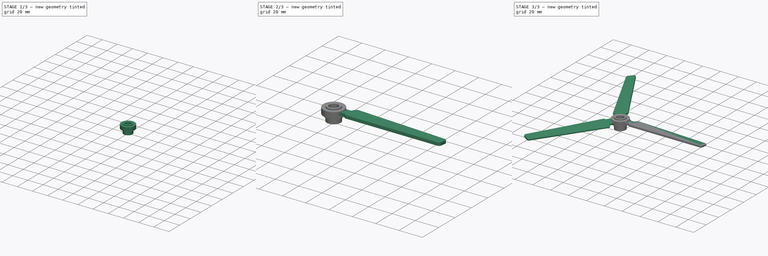
[diagram: build sequence overview — one tinted view per stage of 3, left to right]
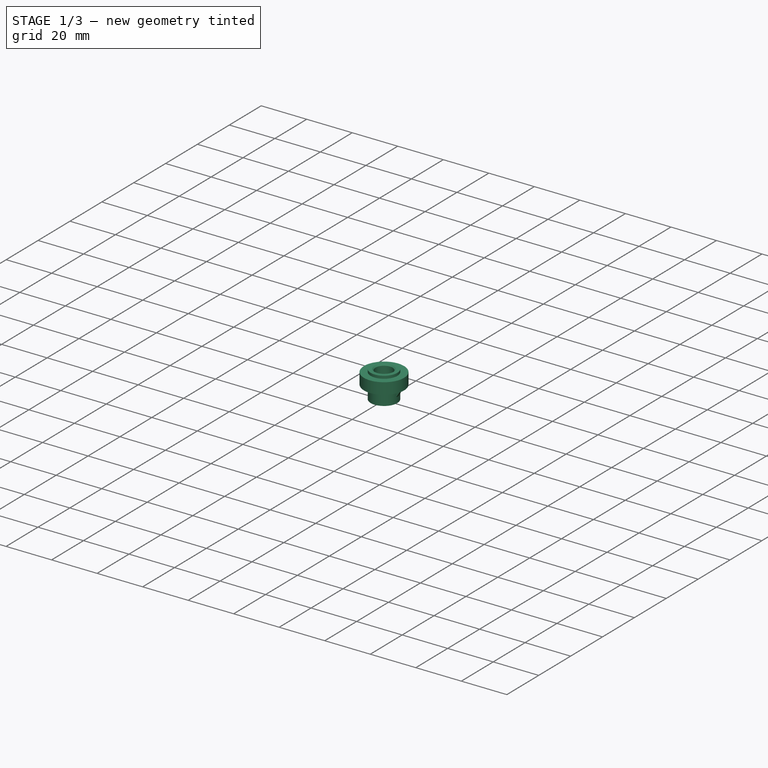
[diagram: stage 1 of 3 — iso view after this stage's code; geometry added in this stage tinted green]
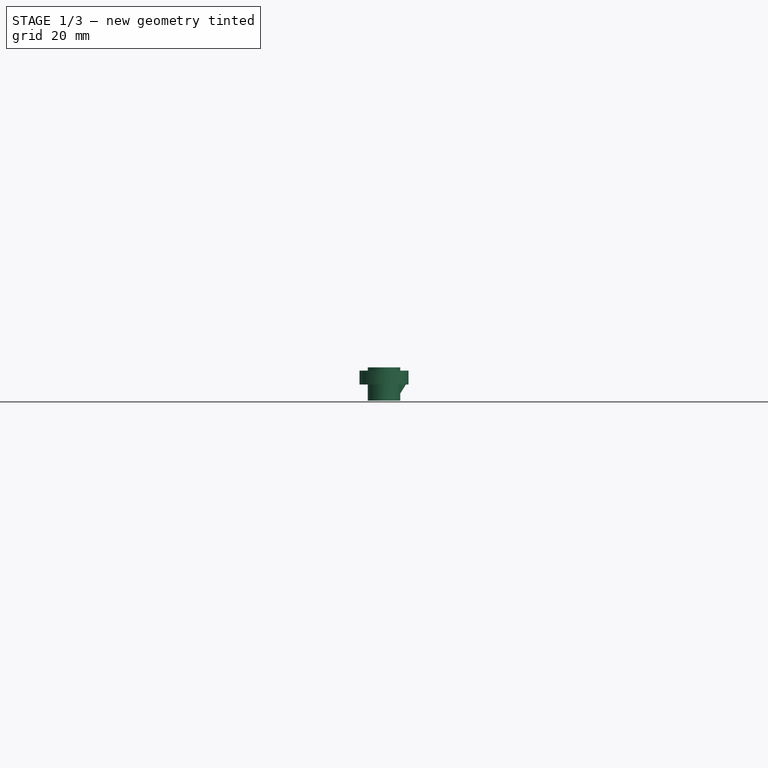
[diagram: stage 1 of 3 — front view after this stage's code; geometry added in this stage tinted green]
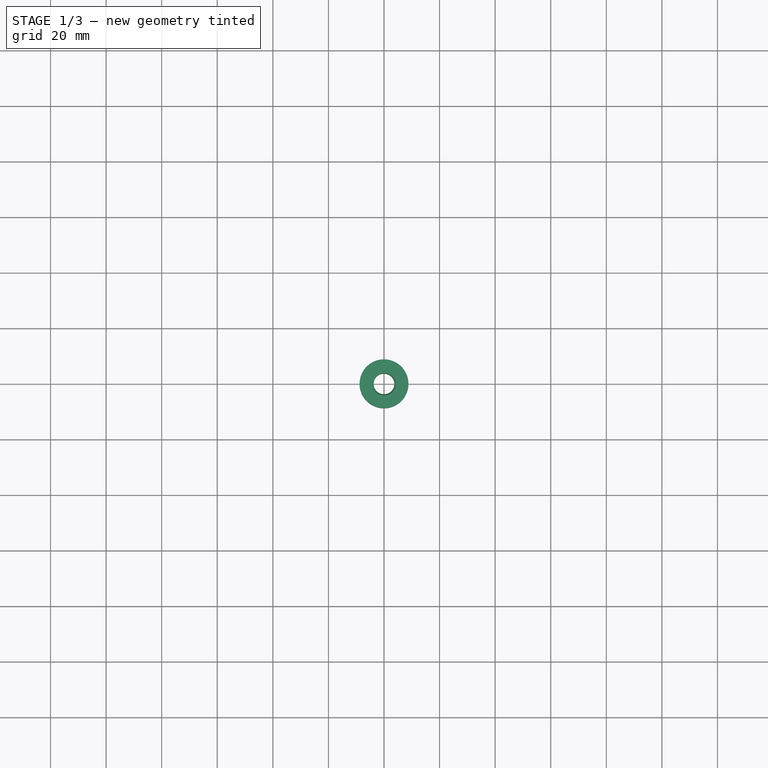
[diagram: stage 1 of 3 — top view after this stage's code; geometry added in this stage tinted green]
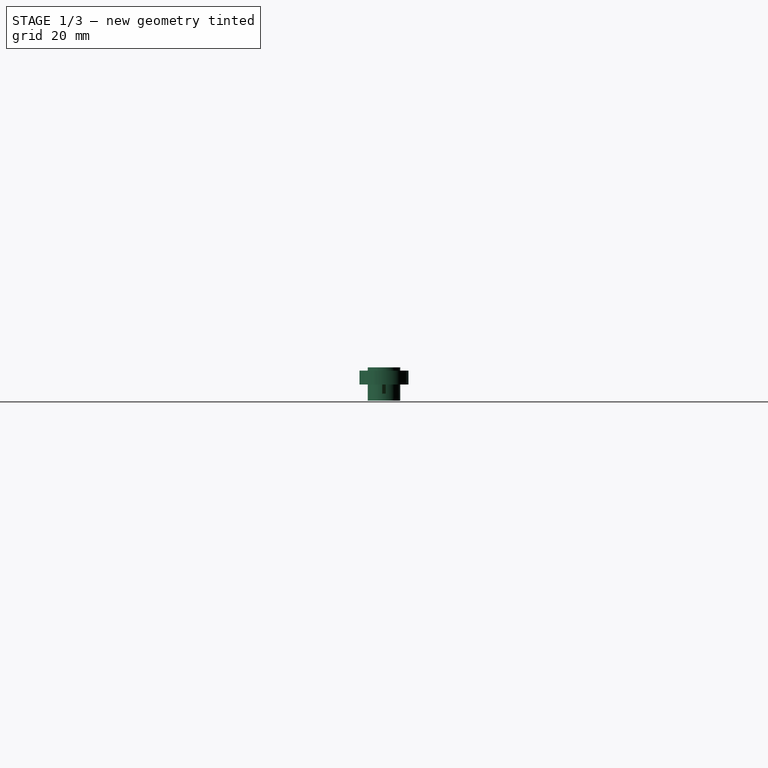
[diagram: stage 1 of 3 — right view after this stage's code; geometry added in this stage tinted green]
FCSTD DOCUMENT  (FreeCAD 1.0R39319 (Git))
Label: Playmobil5916Fix
License: All rights reserved
LicenseURL: https://en.wikipedia.org/wiki/All_rights_reserved
objects: Sketcher::SketchObject×4, PartDesign::Pad×2, PartDesign::PolarPattern×2, PartDesign::Revolution×1, PartDesign::Chamfer×1, PartDesign::Plane×1, PartDesign::Pocket×1, PartDesign::Fillet×1, PartDesign::Body×1
note: 32 computed .brp shape members not serialized (recipe doc carries the construction recipe); baked Part::Feature solids carry a one-line shape summary decoded from their .brp

FEATURE [Sketcher::SketchObject] Sketch
  ArcFitTolerance = 1e-06
  AttachmentSupport = -> [XZ_Plane]
  FullyConstrained = true
  MakeInternals = false
  MapMode = 5
  Placement = pos=(0,0,0) rot=(1,0,0;1.5708rad)
  expr: Constraints[18] = 11.7 / 2
  expr: Constraints[22] = 17.6 / 2
  expr: Constraints[23] = 7.5 / 2
  sketch-geometry (9):
    g0: LineSegment StartX=3.75 StartY=0 StartZ=0 EndX=3.75 EndY=12 EndZ=0
    g1: LineSegment StartX=3.75 StartY=12 StartZ=0 EndX=5.85 EndY=12 EndZ=0
    g2: LineSegment StartX=5.85 StartY=12 StartZ=0 EndX=5.85 EndY=10.8 EndZ=0
    g3: LineSegment StartX=5.85 StartY=10.8 StartZ=0 EndX=8.8 EndY=10.8 EndZ=0
    g4: LineSegment StartX=8.8 StartY=10.8 StartZ=0 EndX=8.8 EndY=5.8 EndZ=0
    g5: LineSegment StartX=8.8 StartY=5.8 StartZ=0 EndX=5.85 EndY=5.8 EndZ=0
    g6: LineSegment StartX=5.85 StartY=5.8 StartZ=0 EndX=5.85 EndY=0 EndZ=0
    g7: LineSegment StartX=5.85 StartY=0 StartZ=0 EndX=3.75 EndY=0 EndZ=0
    g8: LineSegment [constr] StartX=5.85 StartY=10.8 StartZ=0 EndX=5.85 EndY=5.8 EndZ=0
  constraints (26):
    c: Distance(g0) = 12
    c: PointOnObject(g0,g-1)
    c: Vertical(g0)
    c: Coincident(g0,g1)
    c: Horizontal(g1)
    c: Coincident(g1,g2)
    c: Vertical(g2)
    c: Coincident(g2,g3)
    c: Horizontal(g3)
    c: Coincident(g3,g4)
    c: Vertical(g4)
    c: Coincident(g4,g5)
    c: Horizontal(g5)
    c: Coincident(g5,g6)
    c: PointOnObject(g6,g-1)
    c: Vertical(g6)
    c: Coincident(g6,g7)
    c: Coincident(g7,g0)
    c: DistanceX(g-1,g6) = 5.85
    c: Coincident(g8,g2)
    c: Coincident(g8,g5)
    c: Vertical(g8)
    c: DistanceX(g-1,g4) = 8.8
    c: DistanceX(g-1,g0) = 3.75
    c: DistanceY(g2,g2) = 1.2
    c: DistanceY(g6,g6) = 5.8
FEATURE [PartDesign::Revolution] Revolution
  Angle = 360
  Angle2 = 60
  Axis = (0,2e-16,1)
  Base = (0,0,0)
  Placement = pos=(0,0,0) rot=(1,0,0;1.5708rad)
  Profile = -> Sketch
  ReferenceAxis = -> Sketch [V_Axis]
  Refine = true
  Reversed = true
  Suppressed = false
  Type = 0
FEATURE [PartDesign::Chamfer] Chamfer
  Angle = 45
  Base = -> Revolution [Edge2]
  BaseFeature = -> Revolution
  ChamferType = 0
  FlipDirection = false
  Placement = pos=(0,0,0) rot=(1,0,0;1.5708rad)
  Refine = true
  Size = 0.5
  Size2 = 1
  SupportTransform = false
  Suppressed = false
  UseAllEdges = false
FEATURE [Sketcher::SketchObject] Sketch001
  ArcFitTolerance = 1e-06
  AttachmentSupport = -> [XZ_Plane]
  FullyConstrained = true
  MakeInternals = false
  MapMode = 5
  Placement = pos=(0,0,0) rot=(1,0,0;1.5708rad)
  sketch-geometry (3):
    g0: LineSegment StartX=5.5 StartY=2 StartZ=0 EndX=8 EndY=6 EndZ=0
    g1: LineSegment StartX=8 StartY=6 StartZ=0 EndX=5.5 EndY=6 EndZ=0
    g2: LineSegment StartX=5.5 StartY=6 StartZ=0 EndX=5.5 EndY=2 EndZ=0
  constraints (9):
    c: Coincident(g0,g1)
    c: Horizontal(g1)
    c: Coincident(g1,g2)
    c: Coincident(g2,g0)
    c: Vertical(g2)
    c: DistanceX(g-1,g0) = 5.5
    c: DistanceX(g-1,g0) = 8
    c: DistanceY(g-1,g0) = 2
    c: DistanceY(g-1,g1) = 6
FEATURE [PartDesign::Pad] Pad
  BaseFeature = -> Chamfer
  Direction = (0,-1,2e-16)
  Length = 1.3
  Length2 = 10
  Midplane = true
  Placement = pos=(0,0,0) rot=(1,0,0;1.5708rad)
  Profile = -> Sketch001
  ReferenceAxis = -> Sketch001 [N_Axis]
  Refine = true
  Suppressed = false
  Type = 0
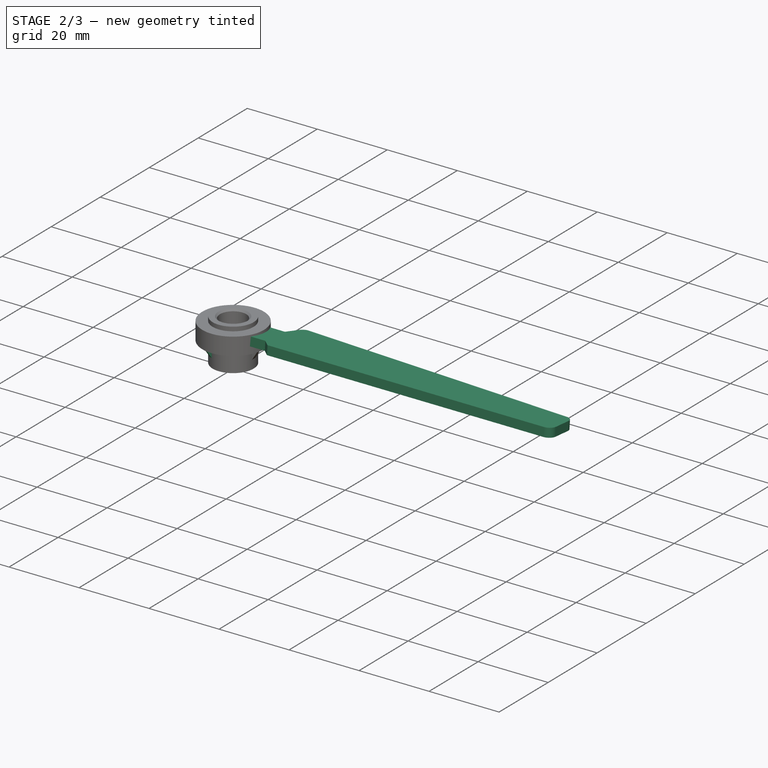
[diagram: stage 2 of 3 — iso view after this stage's code; geometry added in this stage tinted green]
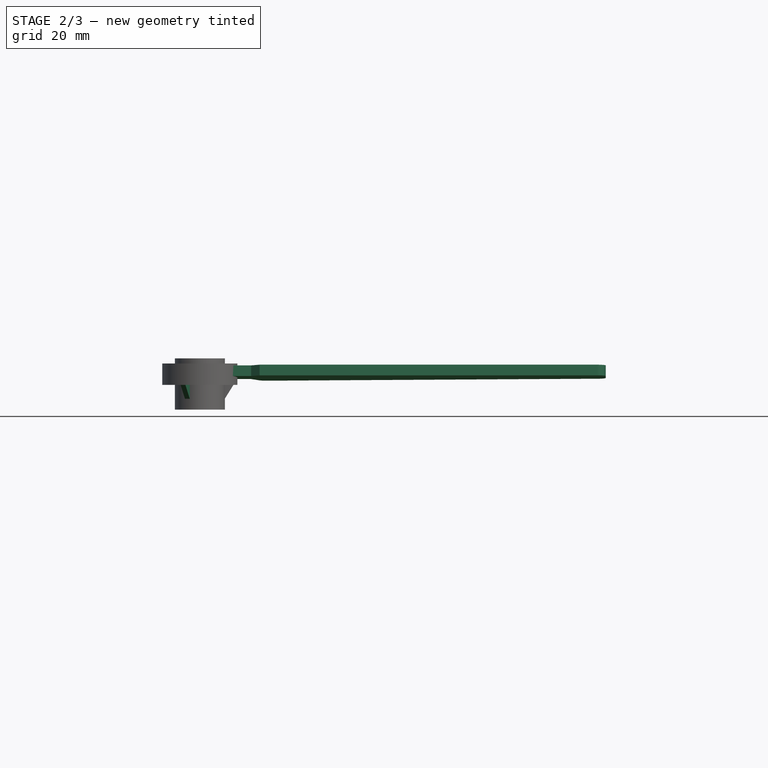
[diagram: stage 2 of 3 — front view after this stage's code; geometry added in this stage tinted green]
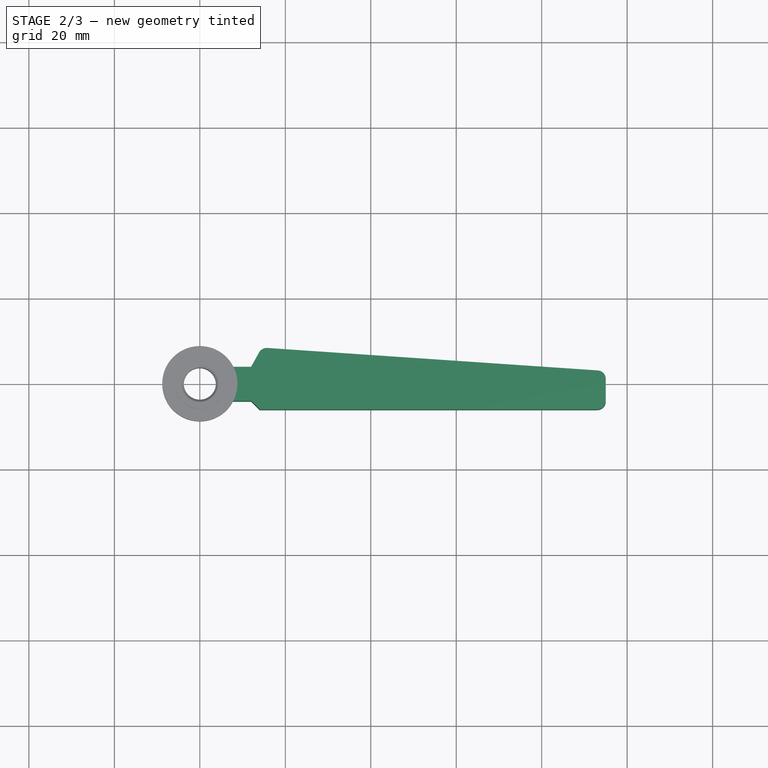
[diagram: stage 2 of 3 — top view after this stage's code; geometry added in this stage tinted green]
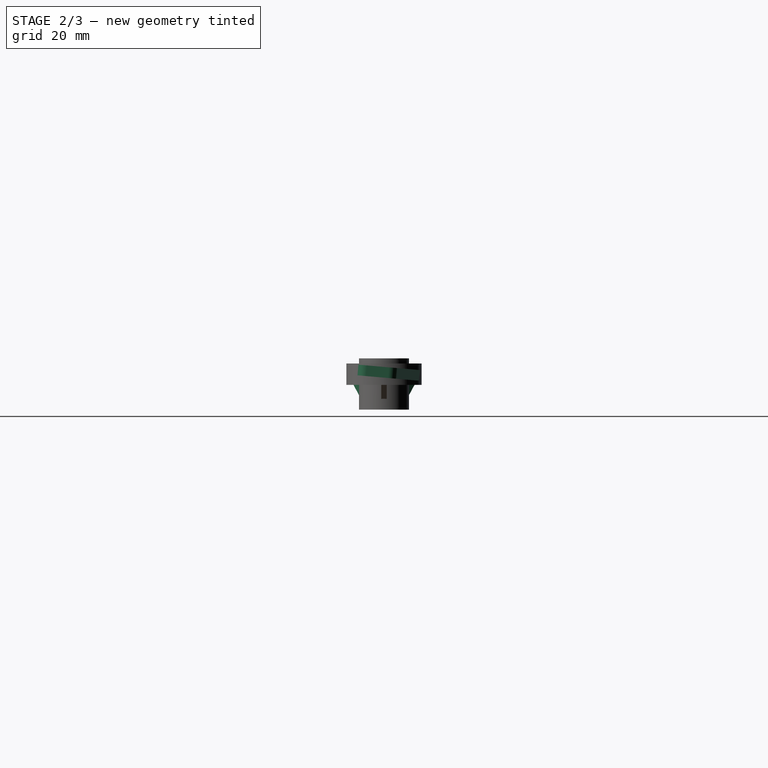
[diagram: stage 2 of 3 — right view after this stage's code; geometry added in this stage tinted green]
FEATURE [PartDesign::PolarPattern] PolarPattern
  Angle = 360
  Axis = -> Z_Axis
  BaseFeature = -> Pad
  Mode = 0
  Occurrences = 3
  Offset = 120
  Originals = -> [Pad]
  Placement = pos=(0,0,0) rot=(1,0,0;1.5708rad)
  Refine = true
  Suppressed = false
  TransformMode = 0
FEATURE [PartDesign::Plane] DatumPlane
  AttachmentOffset = pos=(0,0,10) rot=(-1,0,0;0.087266rad)
  AttachmentSupport = -> [XY_Plane]
  Length = 178.854
  MapMode = 5
  Placement = pos=(0,0,10) rot=(-1,0,0;0.087266rad)
  ResizeMode = 0
  Width = 203.151
FEATURE [Sketcher::SketchObject] Sketch002
  ArcFitTolerance = 1e-06
  AttachmentSupport = -> [DatumPlane]
  FullyConstrained = true
  MakeInternals = false
  MapMode = 5
  Placement = pos=(0,-1e-16,10) rot=(-1,0,0;0.087266rad)
  sketch-geometry (15):
    g0: LineSegment StartX=7 StartY=4 StartZ=0 EndX=7 EndY=-4 EndZ=0
    g1: LineSegment StartX=7 StartY=-4 StartZ=0 EndX=12 EndY=-4 EndZ=0
    g2: LineSegment StartX=12 StartY=-4 StartZ=0 EndX=14 EndY=-6 EndZ=0
    g3: LineSegment StartX=14 StartY=-6 StartZ=0 EndX=93 EndY=-6 EndZ=0
    g4: LineSegment StartX=95 StartY=-4 StartZ=0 EndX=95 EndY=1.13198 EndZ=0
    g5: LineSegment StartX=93.1363 StartY=3.12733 StartZ=0 EndX=15.7676 EndY=8.41339 EndZ=0
    g6: LineSegment StartX=13.883 StartY=7.38933 StartZ=0 EndX=12 EndY=4 EndZ=0
    g7: LineSegment StartX=12 StartY=4 StartZ=0 EndX=7 EndY=4 EndZ=0
    g8: LineSegment [constr] StartX=12 StartY=4 StartZ=0 EndX=12 EndY=-4 EndZ=0
    g9: ArcOfCircle CenterX=93 CenterY=-4 CenterZ=0 NormalX=0 NormalY=0 NormalZ=1 AngleXU=0 Radius=2 StartAngle=4.71239 EndAngle=6.28319
    g10: GeomPoint [constr] X=95 Y=-6 Z=0
    g11: ArcOfCircle CenterX=93 CenterY=1.13198 CenterZ=0 NormalX=0 NormalY=0 NormalZ=1 AngleXU=0 Radius=2 StartAngle=0 EndAngle=1.50258
    g12: GeomPoint [constr] X=95 Y=3 Z=0
    g13: ArcOfCircle CenterX=15.6313 CenterY=6.41805 CenterZ=0 NormalX=0 NormalY=0 NormalZ=1 AngleXU=0 Radius=2 StartAngle=1.50258 EndAngle=2.63449
    g14: GeomPoint [constr] X=14.5 Y=8.5 Z=0
  constraints (37):
    c: Coincident(g0,g1)
    c: Horizontal(g1)
    c: Coincident(g1,g2)
    c: Coincident(g2,g3)
    c: Horizontal(g3)
    c: Coincident(g6,g7)
    c: Coincident(g7,g0)
    c: Horizontal(g7)
    c: Symmetric(g0,g0,g-1)
    c: Equal(g7,g1)
    c: DistanceX(g-1,g0) = 7
    c: DistanceX(g-1,g10) = 95
    c: Vertical(g4)
    c: DistanceY(g10,g12) = 9
    c: DistanceY(g2,g14) = 14.5
    c: DistanceY(g0,g0) = 8
    c: DistanceY(g2,g1) = 2
    c: Coincident(g8,g6)
    c: Coincident(g8,g1)
    c: DistanceX(g6,g14) = 2.5
    c: DistanceX(g1,g2) = 2
    c: DistanceX(g7,g7) = 5
    c: PointOnObject(g10,g3)
    c: PointOnObject(g10,g4)
    c: Tangent(g3,g9) = -1.5708
    c: Tangent(g4,g9) = -1.5708
    c: PointOnObject(g12,g5)
    c: PointOnObject(g12,g4)
    c: Tangent(g5,g11) = -1.5708
    c: Tangent(g4,g11) = -1.5708
    c: Equal(g11,g9)
    c: Radius(g11) = 2
    c: PointOnObject(g14,g5)
    c: PointOnObject(g14,g6)
    c: Tangent(g5,g13) = -1.5708
    c: Tangent(g6,g13) = -1.5708
    c: Radius(g13) = 2
FEATURE [PartDesign::Pad] Pad001
  BaseFeature = -> PolarPattern
  Direction = (0,0.0871557,0.996195)
  Length = 2.5
  Length2 = 10
  Placement = pos=(0,0,0) rot=(1,0,0;1.5708rad)
  Profile = -> Sketch002
  ReferenceAxis = -> Sketch002 [N_Axis]
  Refine = true
  Reversed = true
  Suppressed = false
  Type = 0
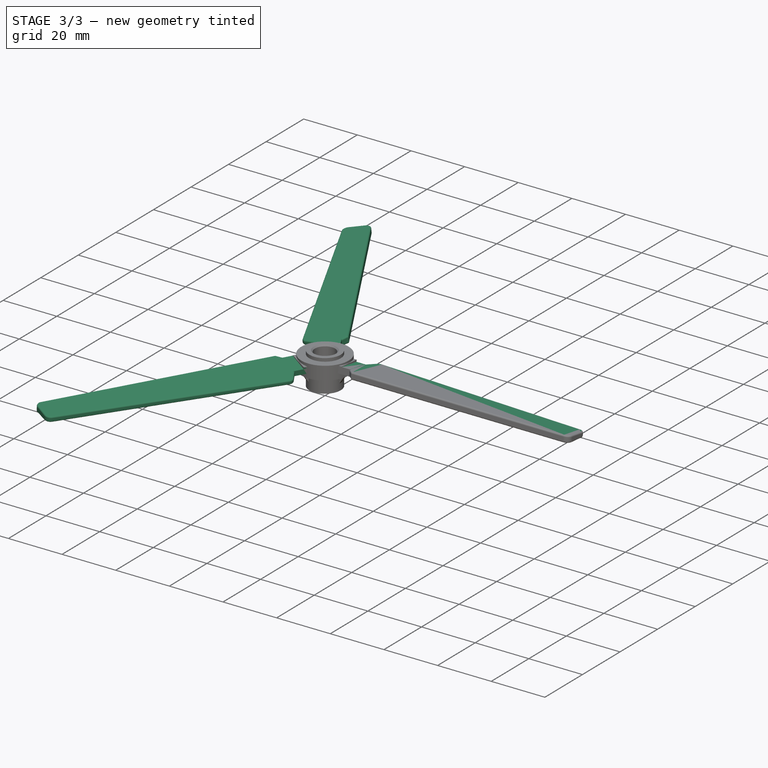
[diagram: stage 3 of 3 — iso view after this stage's code; geometry added in this stage tinted green]
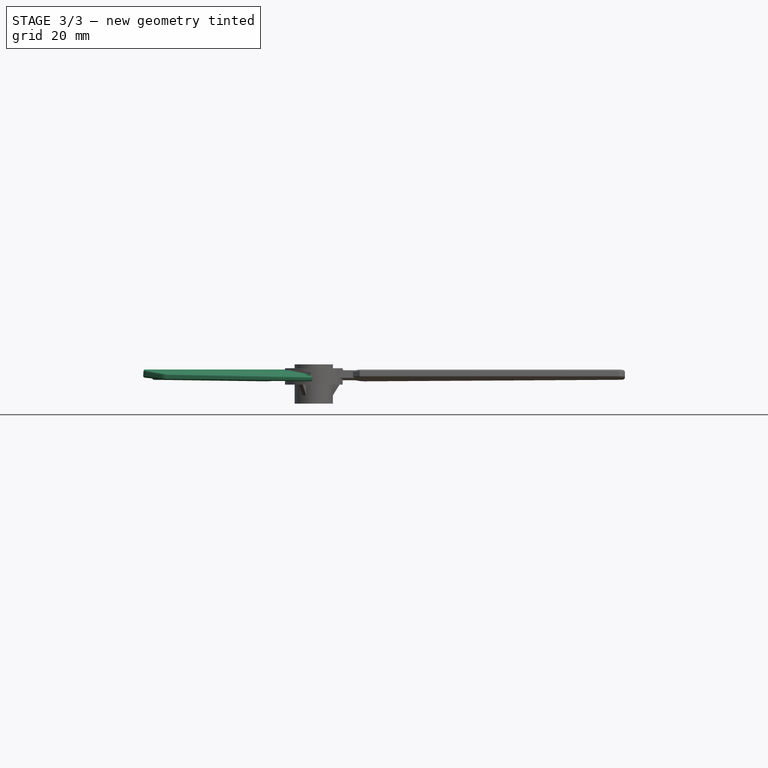
[diagram: stage 3 of 3 — front view after this stage's code; geometry added in this stage tinted green]
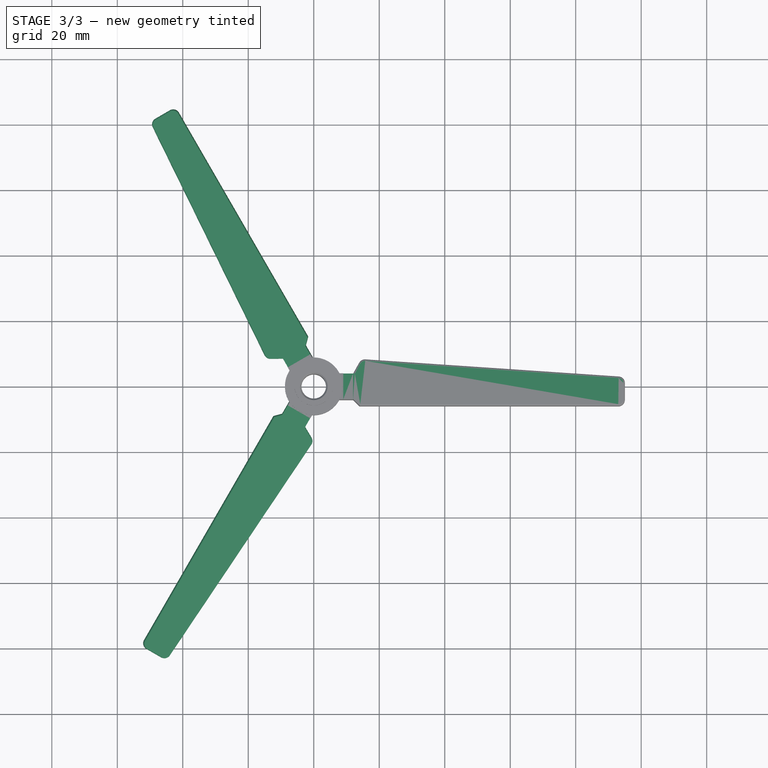
[diagram: stage 3 of 3 — top view after this stage's code; geometry added in this stage tinted green]
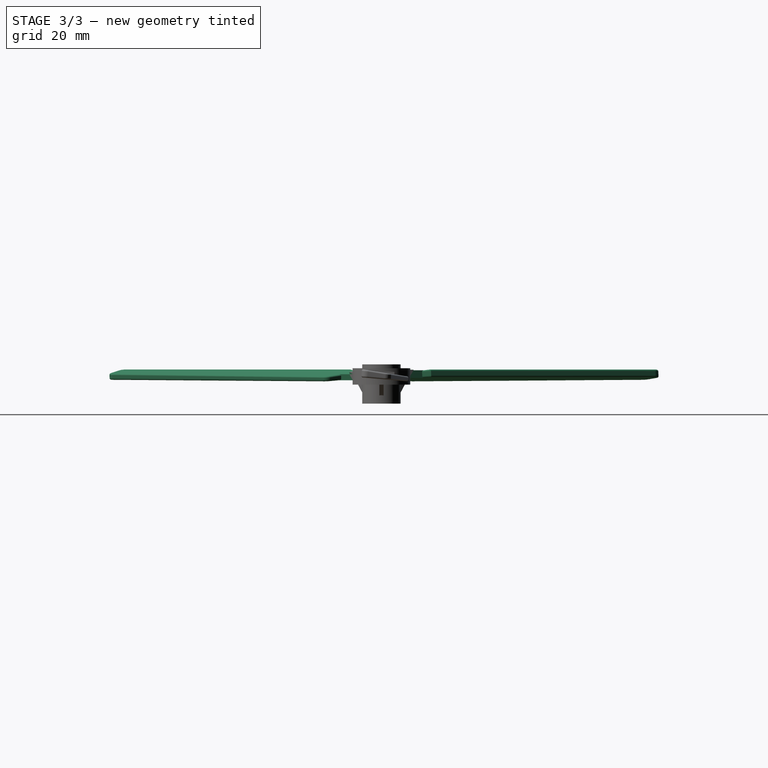
[diagram: stage 3 of 3 — right view after this stage's code; geometry added in this stage tinted green]
FEATURE [Sketcher::SketchObject] Sketch003
  ArcFitTolerance = 1e-06
  AttachmentSupport = -> [Pad001]
  ExternalGeometry = -> [Pad001]
  FullyConstrained = true
  MakeInternals = false
  MapMode = 5
  Placement = pos=(95,0,0) rot=(0.707107,0,0.707107;3.14159rad)
  sketch-geometry (4):
    g0: LineSegment StartX=10.8386 StartY=7.97717 StartZ=0 EndX=7.78329 EndY=-11.3814 EndZ=0
    g1: LineSegment StartX=7.78329 StartY=-11.3814 StartZ=0 EndX=10.8386 EndY=-11.3814 EndZ=0
    g2: LineSegment StartX=10.8386 StartY=-11.3814 StartZ=0 EndX=10.8386 EndY=7.97717 EndZ=0
    g3: GeomPoint X=8.27053 Y=-8.29422 Z=0
  constraints (11):
    c: Coincident(g0,g1)
    c: Horizontal(g1)
    c: Coincident(g1,g2)
    c: Coincident(g2,g0)
    c: Vertical(g2)
    c: PointOnObject(g-3,g0)
    c: DistanceY(g-3,g0) = 2
    c: DistanceY(g0,g-4) = 3
    c: PointOnObject(g3,g0)
    c: PointOnObject(g3,g-4)
    c: Distance(g-4,g3) = 1.5
FEATURE [PartDesign::Pocket] Pocket
  BaseFeature = -> Pad001
  Direction = (-1,0,2e-16)
  Length = 86
  Length2 = 5
  Placement = pos=(0,0,0) rot=(1,0,0;1.5708rad)
  Profile = -> Sketch003
  ReferenceAxis = -> Sketch003 [N_Axis]
  Refine = true
  Suppressed = false
  Type = 0
FEATURE [PartDesign::PolarPattern] PolarPattern001
  Angle = 360
  Axis = -> Z_Axis
  BaseFeature = -> Pocket
  Mode = 0
  Occurrences = 3
  Offset = 120
  Originals = -> [Pad001,Pocket]
  Placement = pos=(0,0,0) rot=(1,0,0;1.5708rad)
  Refine = true
  Suppressed = false
  TransformMode = 0
FEATURE [PartDesign::Fillet] Fillet
  Base = -> PolarPattern001 [Edge134,Edge79,Edge67,Edge117,Edge98,Edge150,Edge84,Edge144,Edge160,Edge103,Edge120,Edge72]
  BaseFeature = -> PolarPattern001
  Placement = pos=(0,0,0) rot=(1,0,0;1.5708rad)
  Radius = 0.5
  Refine = true
  SupportTransform = false
  Suppressed = false
  UseAllEdges = false
FEATURE [PartDesign::Body] Body
  AllowCompound = false
  Group = -> [Sketch,Revolution,Chamfer,Sketch001,Pad,PolarPattern,DatumPlane,Sketch002,Pad001,Sketch003,Pocket,PolarPattern001,Fillet]
  Origin = -> Origin
  Tip = -> Fillet
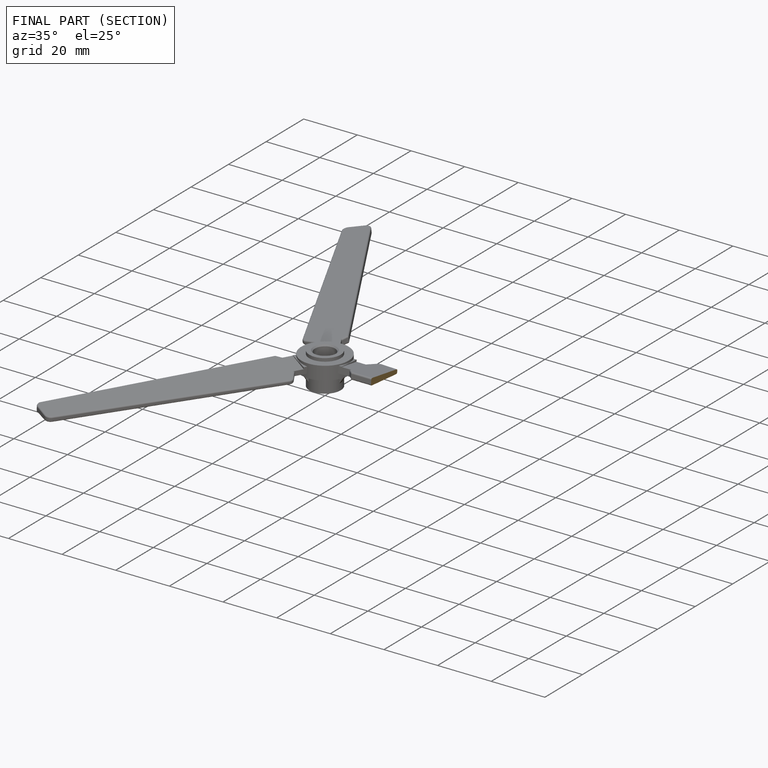
[diagram: finished part — half-section view (interior)]
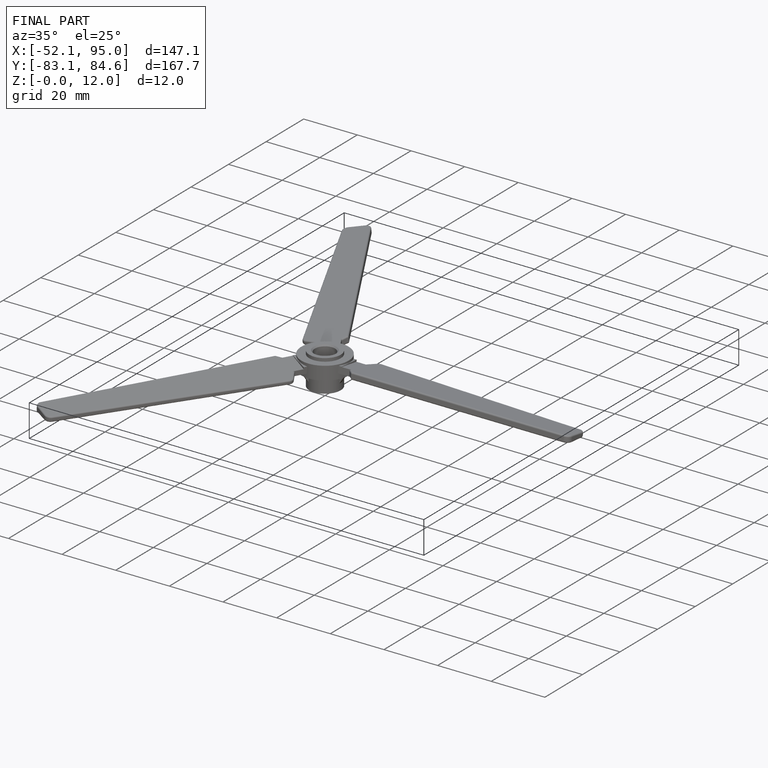
[diagram: finished part — iso view with bounding-box wireframe]
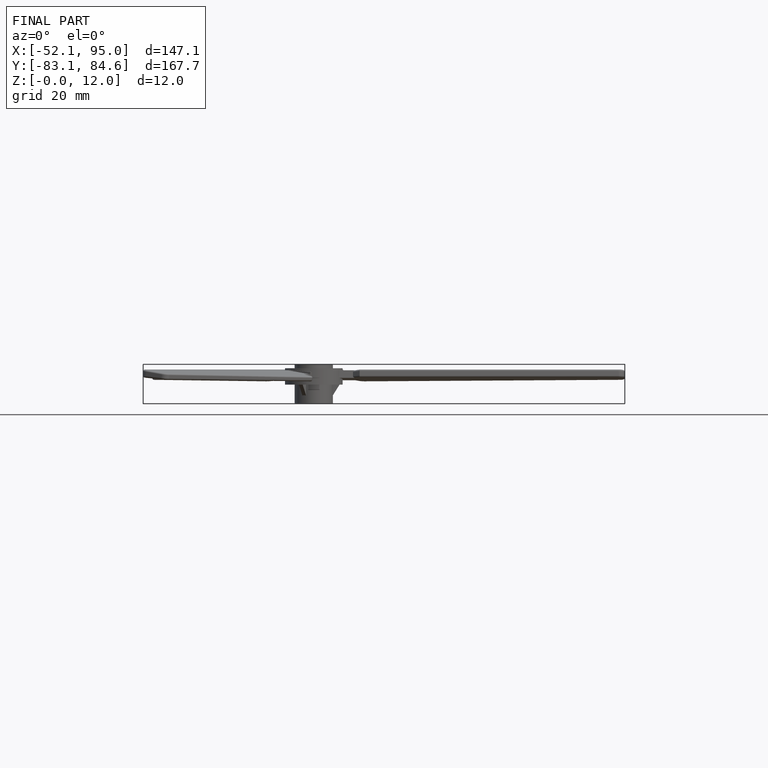
[diagram: finished part — front view with bounding-box wireframe]
